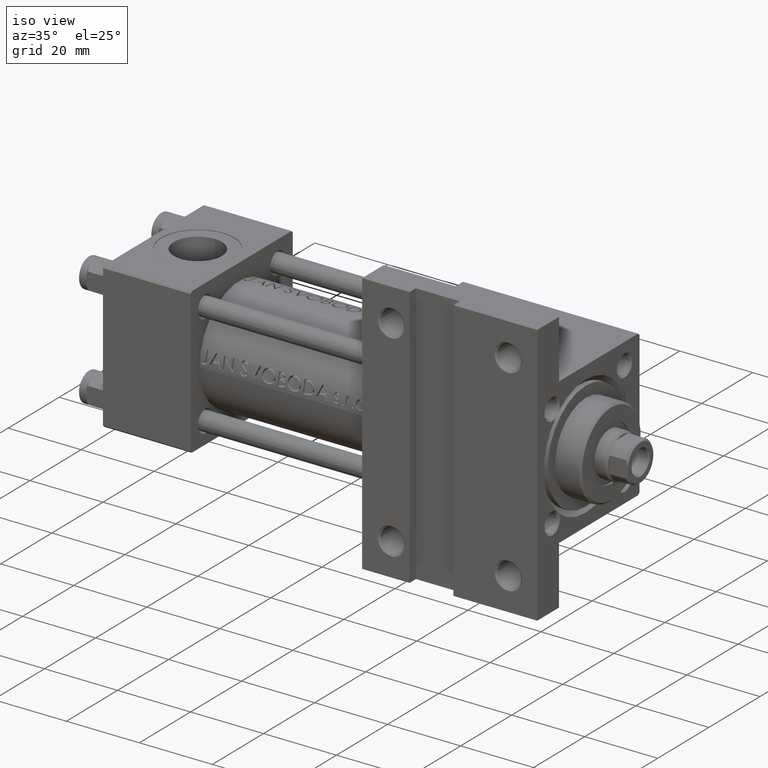
[diagram: clean part render]
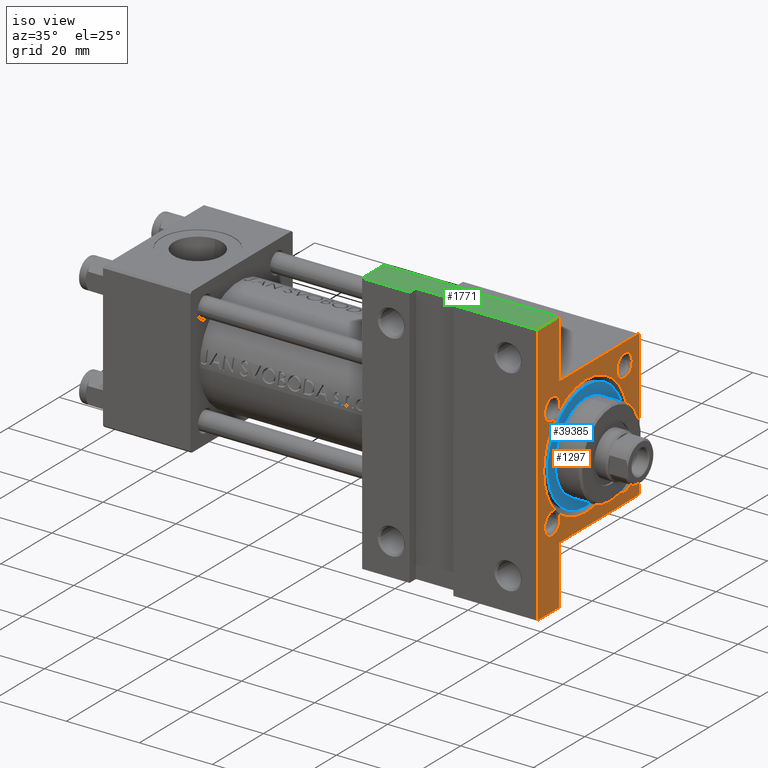
[diagram: same view with three faces highlighted in distinct colors, each labeled with its STEP entity id]
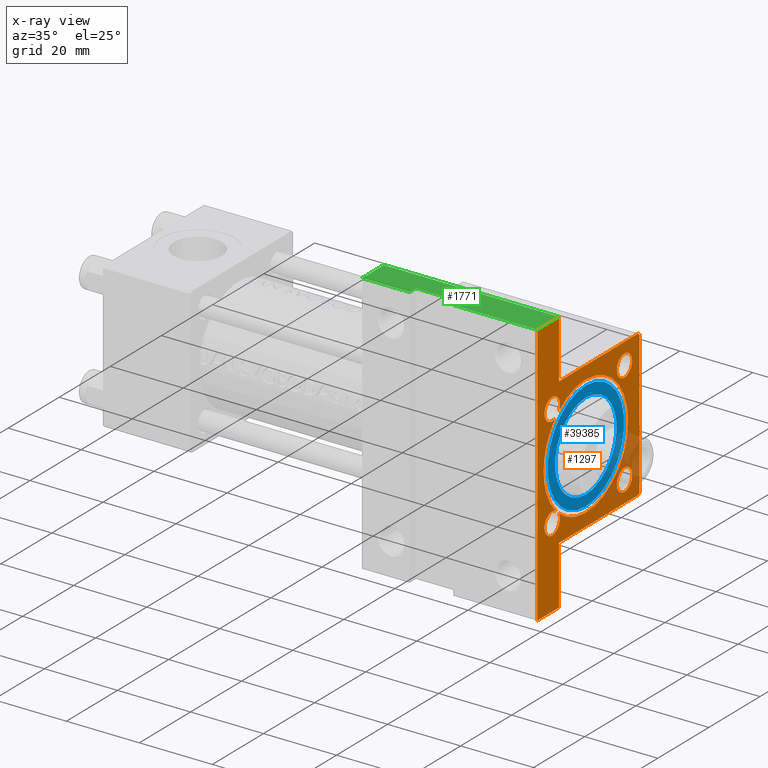
[diagram: x-ray of the same camera — body ghosted, the three highlighted faces saturated]
A machine part, iso view with three faces highlighted in distinct colors.
The next image is the same camera in x-ray (body ghosted, the three faces saturated) — at least one of them is partly hidden behind the body in this view.
Their STEP definitions:

[orange] entity #1297 — the highlighted planar face has unit normal (-1, 0, -0).
#249 = ORIENTED_EDGE ( 'NONE', *, *, #41827, .T. ) ;
#264 = ORIENTED_EDGE ( 'NONE', *, *, #32524, .F. ) ;
#411 = CIRCLE ( 'NONE', #37920, 3.000000000000031974 ) ;
#608 = EDGE_LOOP ( 'NONE', ( #23054, #41291 ) ) ;
#1120 = CARTESIAN_POINT ( 'NONE',  ( 118.9999999999999858, 20.00000000000000000, -11.50000000000000000 ) ) ;
#1297 = ADVANCED_FACE ( 'NONE', ( #10454, #13440, #6466, #40636 ), #21682, .F. ) ;
#1740 = CARTESIAN_POINT ( 'NONE',  ( 119.0000000000000142, 14.14999999999999858, 14.15000000000000036 ) ) ;
#2128 = CARTESIAN_POINT ( 'NONE',  ( 119.0000000000000142, 14.14999999999999858, -14.15000000000000036 ) ) ;
#2230 = CARTESIAN_POINT ( 'NONE',  ( 119.0000000000000142, 0.000000000000000000, 0.000000000000000000 ) ) ;
#2457 = EDGE_CURVE ( 'NONE', #38130, #35432, #19448, .T. ) ;
#2539 = CARTESIAN_POINT ( 'NONE',  ( 119.0000000000000142, 19.99999999999999645, -20.00000000000000000 ) ) ;
#2623 = EDGE_CURVE ( 'NONE', #14217, #37975, #3012, .T. ) ;
#3012 = CIRCLE ( 'NONE', #13351, 16.50000000000001421 ) ;
#3019 = DIRECTION ( 'NONE',  ( 8.673617379884029556E-16, -1.000000000000000000, 0.000000000000000000 ) ) ;
#3034 = DIRECTION ( 'NONE',  ( 0.000000000000000000, -1.000000000000000000, 0.000000000000000000 ) ) ;
#3184 = CARTESIAN_POINT ( 'NONE',  ( 118.9999999999999716, 36.00000000000001421, -11.50000000000000000 ) ) ;
#3350 = CIRCLE ( 'NONE', #45548, 3.000000000000031974 ) ;
#3710 = DIRECTION ( 'NONE',  ( -1.000000000000000000, -0.000000000000000000, -0.000000000000000000 ) ) ;
#3801 = VERTEX_POINT ( 'NONE', #1120 ) ;
#3923 = VERTEX_POINT ( 'NONE', #36272 ) ;
#4035 = DIRECTION ( 'NONE',  ( 0.000000000000000000, 0.000000000000000000, 1.000000000000000000 ) ) ;
#4233 = CIRCLE ( 'NONE', #17782, 16.50000000000001421 ) ;
#4400 = EDGE_CURVE ( 'NONE', #37975, #10993, #6940, .T. ) ;
#4580 = ORIENTED_EDGE ( 'NONE', *, *, #10381, .T. ) ;
#4896 = ORIENTED_EDGE ( 'NONE', *, *, #10167, .T. ) ;
#5664 = CARTESIAN_POINT ( 'NONE',  ( 119.0000000000000142, -14.14999999999999503, -14.15000000000000391 ) ) ;
#6290 = AXIS2_PLACEMENT_3D ( 'NONE', #5664, #43825, #32604 ) ;
#6293 = CARTESIAN_POINT ( 'NONE',  ( 119.0000000000000142, 14.14999999999999858, -14.15000000000000036 ) ) ;
#6389 = VERTEX_POINT ( 'NONE', #19272 ) ;
#6466 = FACE_BOUND ( 'NONE', #39363, .T. ) ;
#6588 = DIRECTION ( 'NONE',  ( 0.000000000000000000, 0.000000000000000000, 1.000000000000000000 ) ) ;
#6771 = CARTESIAN_POINT ( 'NONE',  ( 118.9999999999999716, 36.00000000000001421, -11.50000000000000000 ) ) ;
#6878 = VERTEX_POINT ( 'NONE', #32655 ) ;
#6884 = VERTEX_POINT ( 'NONE', #32167 ) ;
#6888 = CARTESIAN_POINT ( 'NONE',  ( 119.0000000000000142, 0.000000000000000000, -1.000000000000000888 ) ) ;
#6940 = CIRCLE ( 'NONE', #12503, 3.000000000000031974 ) ;
#7499 = AXIS2_PLACEMENT_3D ( 'NONE', #31102, #31588, #46563 ) ;
#7660 = ORIENTED_EDGE ( 'NONE', *, *, #27034, .F. ) ;
#7753 = DIRECTION ( 'NONE',  ( 0.000000000000000000, -1.000000000000000000, -8.673617379884035472E-17 ) ) ;
#7806 = ORIENTED_EDGE ( 'NONE', *, *, #44579, .T. ) ;
#8017 = VERTEX_POINT ( 'NONE', #18915 ) ;
#8088 = CIRCLE ( 'NONE', #46333, 16.50000000000001421 ) ;
#8223 = EDGE_CURVE ( 'NONE', #12756, #28258, #21415, .T. ) ;
#8418 = DIRECTION ( 'NONE',  ( 0.000000000000000000, -0.7071067811865474617, 0.7071067811865474617 ) ) ;
#8598 = ORIENTED_EDGE ( 'NONE', *, *, #18659, .T. ) ;
#9379 = VECTOR ( 'NONE', #15705, 1000.000000000000000 ) ;
#9632 = DIRECTION ( 'NONE',  ( -1.000000000000000000, -0.000000000000000000, -0.000000000000000000 ) ) ;
#10053 = EDGE_CURVE ( 'NONE', #28258, #6389, #37408, .T. ) ;
#10167 = EDGE_CURVE ( 'NONE', #38130, #3801, #28968, .T. ) ;
#10381 = EDGE_CURVE ( 'NONE', #11260, #3923, #45663, .T. ) ;
#10412 = CARTESIAN_POINT ( 'NONE',  ( 119.0000000000000142, 19.49999999999999645, 20.00000000000000000 ) ) ;
#10454 = FACE_BOUND ( 'NONE', #27647, .T. ) ;
#10612 = EDGE_CURVE ( 'NONE', #3923, #8017, #47318, .T. ) ;
#10780 = DIRECTION ( 'NONE',  ( 0.000000000000000000, 0.000000000000000000, 1.000000000000000000 ) ) ;
#10982 = CARTESIAN_POINT ( 'NONE',  ( 119.0000000000000000, -36.00000000000001421, -11.50000000000000000 ) ) ;
#10993 = VERTEX_POINT ( 'NONE', #37410 ) ;
#11017 = DIRECTION ( 'NONE',  ( 0.000000000000000000, 0.000000000000000000, -1.000000000000000000 ) ) ;
#11260 = VERTEX_POINT ( 'NONE', #10412 ) ;
#11483 = CARTESIAN_POINT ( 'NONE',  ( 119.0000000000000142, 14.14999999999999858, 17.15000000000003411 ) ) ;
#11731 = VERTEX_POINT ( 'NONE', #40922 ) ;
#11897 = AXIS2_PLACEMENT_3D ( 'NONE', #35466, #16728, #28230 ) ;
#12223 = CARTESIAN_POINT ( 'NONE',  ( 119.0000000000000142, -20.00000000000000000, -11.50000000000000355 ) ) ;
#12245 = CIRCLE ( 'NONE', #7499, 16.50000000000001421 ) ;
#12395 = DIRECTION ( 'NONE',  ( -0.000000000000000000, -0.7071067811865474617, -0.7071067811865474617 ) ) ;
#12503 = AXIS2_PLACEMENT_3D ( 'NONE', #6293, #21758, #10780 ) ;
#12756 = VERTEX_POINT ( 'NONE', #13779 ) ;
#12876 = CARTESIAN_POINT ( 'NONE',  ( 119.0000000000000142, -20.00000000000000355, 19.50000000000002487 ) ) ;
#12922 = ORIENTED_EDGE ( 'NONE', *, *, #20973, .T. ) ;
#13351 = AXIS2_PLACEMENT_3D ( 'NONE', #30389, #3710, #49357 ) ;
#13440 = FACE_BOUND ( 'NONE', #608, .T. ) ;
#13779 = CARTESIAN_POINT ( 'NONE',  ( 119.0000000000000142, -14.14999999999999503, -17.15000000000003766 ) ) ;
#14016 = ORIENTED_EDGE ( 'NONE', *, *, #10612, .T. ) ;
#14217 = VERTEX_POINT ( 'NONE', #15648 ) ;
#14497 = VERTEX_POINT ( 'NONE', #32957 ) ;
#14722 = VERTEX_POINT ( 'NONE', #48126 ) ;
#15006 = DIRECTION ( 'NONE',  ( -1.000000000000000000, -0.000000000000000000, -0.000000000000000000 ) ) ;
#15648 = CARTESIAN_POINT ( 'NONE',  ( 119.0000000000000142, 2.020667218593134678E-15, 15.50000000000001421 ) ) ;
#15705 = DIRECTION ( 'NONE',  ( 0.000000000000000000, 0.000000000000000000, -1.000000000000000000 ) ) ;
#15757 = DIRECTION ( 'NONE',  ( -1.000000000000000000, -0.000000000000000000, -0.000000000000000000 ) ) ;
#16173 = EDGE_CURVE ( 'NONE', #14722, #6878, #28024, .T. ) ;
#16728 = DIRECTION ( 'NONE',  ( -1.000000000000000000, -0.000000000000000000, -0.000000000000000000 ) ) ;
#17271 = VERTEX_POINT ( 'NONE', #10982 ) ;
#17477 = VECTOR ( 'NONE', #12395, 1000.000000000000114 ) ;
#17530 = DIRECTION ( 'NONE',  ( -1.000000000000000000, -0.000000000000000000, -0.000000000000000000 ) ) ;
#17595 = DIRECTION ( 'NONE',  ( -1.000000000000000000, -0.000000000000000000, -0.000000000000000000 ) ) ;
#17771 = ORIENTED_EDGE ( 'NONE', *, *, #4400, .T. ) ;
#17782 = AXIS2_PLACEMENT_3D ( 'NONE', #43803, #9632, #29331 ) ;
#18302 = VECTOR ( 'NONE', #7753, 1000.000000000000000 ) ;
#18329 = DIRECTION ( 'NONE',  ( 0.000000000000000000, 0.000000000000000000, 1.000000000000000000 ) ) ;
#18413 = VERTEX_POINT ( 'NONE', #41125 ) ;
#18659 = EDGE_CURVE ( 'NONE', #6884, #11731, #8088, .T. ) ;
#18823 = DIRECTION ( 'NONE',  ( -1.000000000000000000, -0.000000000000000000, -0.000000000000000000 ) ) ;
#18915 = CARTESIAN_POINT ( 'NONE',  ( 119.0000000000000142, -20.00000000000000355, 19.50000000000002487 ) ) ;
#19272 = CARTESIAN_POINT ( 'NONE',  ( 119.0000000000000142, -12.71526989445523448, -11.51531794627061345 ) ) ;
#19448 = LINE ( 'NONE', #34681, #9379 ) ;
#19546 = ORIENTED_EDGE ( 'NONE', *, *, #25597, .T. ) ;
#19807 = LINE ( 'NONE', #23564, #43334 ) ;
#20973 = EDGE_CURVE ( 'NONE', #44413, #25898, #45631, .T. ) ;
#21331 = DIRECTION ( 'NONE',  ( -1.000000000000000000, -0.000000000000000000, -0.000000000000000000 ) ) ;
#21345 = ORIENTED_EDGE ( 'NONE', *, *, #31842, .T. ) ;
#21415 = CIRCLE ( 'NONE', #6290, 3.000000000000031974 ) ;
#21682 = PLANE ( 'NONE',  #26114 ) ;
#21758 = DIRECTION ( 'NONE',  ( -1.000000000000000000, -0.000000000000000000, -0.000000000000000000 ) ) ;
#21997 = LINE ( 'NONE', #2539, #31567 ) ;
#23054 = ORIENTED_EDGE ( 'NONE', *, *, #16173, .T. ) ;
#23564 = CARTESIAN_POINT ( 'NONE',  ( 119.0000000000000142, -20.00000000000000355, 19.99999999999999645 ) ) ;
#24115 = AXIS2_PLACEMENT_3D ( 'NONE', #37641, #49124, #34385 ) ;
#24177 = VECTOR ( 'NONE', #8418, 1000.000000000000114 ) ;
#24367 = DIRECTION ( 'NONE',  ( -0.000000000000000000, -1.000000000000000000, -0.000000000000000000 ) ) ;
#24943 = DIRECTION ( 'NONE',  ( 0.000000000000000000, 0.000000000000000000, 1.000000000000000000 ) ) ;
#24963 = ORIENTED_EDGE ( 'NONE', *, *, #8223, .T. ) ;
#25220 = AXIS2_PLACEMENT_3D ( 'NONE', #26503, #15006, #4035 ) ;
#25597 = EDGE_CURVE ( 'NONE', #10993, #14497, #411, .T. ) ;
#25898 = VERTEX_POINT ( 'NONE', #46700 ) ;
#26114 = AXIS2_PLACEMENT_3D ( 'NONE', #2230, #29414, #40390 ) ;
#26408 = EDGE_CURVE ( 'NONE', #6878, #14722, #30790, .T. ) ;
#26503 = CARTESIAN_POINT ( 'NONE',  ( 119.0000000000000142, -14.14999999999999503, -14.15000000000000391 ) ) ;
#27034 = EDGE_CURVE ( 'NONE', #35432, #49277, #21997, .T. ) ;
#27123 = EDGE_CURVE ( 'NONE', #17271, #49277, #37450, .T. ) ;
#27274 = CIRCLE ( 'NONE', #48006, 3.000000000000031974 ) ;
#27278 = VERTEX_POINT ( 'NONE', #12223 ) ;
#27647 = EDGE_LOOP ( 'NONE', ( #31753, #12922 ) ) ;
#28024 = CIRCLE ( 'NONE', #39212, 3.000000000000031974 ) ;
#28230 = DIRECTION ( 'NONE',  ( 0.000000000000000000, 0.000000000000000000, 1.000000000000000000 ) ) ;
#28235 = ORIENTED_EDGE ( 'NONE', *, *, #43885, .T. ) ;
#28258 = VERTEX_POINT ( 'NONE', #45196 ) ;
#28568 = VERTEX_POINT ( 'NONE', #44886 ) ;
#28594 = CARTESIAN_POINT ( 'NONE',  ( 119.0000000000000000, -36.00000000000001421, -11.50000000000000000 ) ) ;
#28610 = VECTOR ( 'NONE', #3019, 1000.000000000000000 ) ;
#28968 = LINE ( 'NONE', #6771, #28610 ) ;
#29331 = DIRECTION ( 'NONE',  ( 0.000000000000000000, 0.000000000000000000, 1.000000000000000000 ) ) ;
#29414 = DIRECTION ( 'NONE',  ( -1.000000000000000000, 0.000000000000000000, -0.000000000000000000 ) ) ;
#29751 = CARTESIAN_POINT ( 'NONE',  ( 119.0000000000000142, 12.71526989445523803, -11.51531794627060989 ) ) ;
#29845 = DIRECTION ( 'NONE',  ( 0.000000000000000000, 0.000000000000000000, 1.000000000000000000 ) ) ;
#29989 = VECTOR ( 'NONE', #11017, 1000.000000000000000 ) ;
#30389 = CARTESIAN_POINT ( 'NONE',  ( 119.0000000000000142, 0.000000000000000000, -1.000000000000000888 ) ) ;
#30432 = ORIENTED_EDGE ( 'NONE', *, *, #31634, .T. ) ;
#30637 = CARTESIAN_POINT ( 'NONE',  ( 119.0000000000000142, 19.49999999999999645, 20.00000000000000000 ) ) ;
#30790 = CIRCLE ( 'NONE', #49110, 3.000000000000031974 ) ;
#31102 = CARTESIAN_POINT ( 'NONE',  ( 119.0000000000000142, 0.000000000000000000, -1.000000000000000888 ) ) ;
#31567 = VECTOR ( 'NONE', #3034, 1000.000000000000000 ) ;
#31588 = DIRECTION ( 'NONE',  ( -1.000000000000000000, -0.000000000000000000, -0.000000000000000000 ) ) ;
#31634 = EDGE_CURVE ( 'NONE', #11731, #18413, #12245, .T. ) ;
#31652 = ORIENTED_EDGE ( 'NONE', *, *, #36820, .T. ) ;
#31659 = CARTESIAN_POINT ( 'NONE',  ( 119.0000000000000142, 19.99999999999999645, 20.00000000000000000 ) ) ;
#31703 = CARTESIAN_POINT ( 'NONE',  ( 119.0000000000000000, -36.00000000000001421, -20.00000000000000000 ) ) ;
#31753 = ORIENTED_EDGE ( 'NONE', *, *, #39858, .T. ) ;
#31842 = EDGE_CURVE ( 'NONE', #8017, #27278, #19807, .T. ) ;
#31979 = VECTOR ( 'NONE', #42890, 1000.000000000000000 ) ;
#32024 = EDGE_LOOP ( 'NONE', ( #264, #7806, #4580, #14016, #21345, #48028, #41172, #7660, #34467, #4896 ) ) ;
#32167 = CARTESIAN_POINT ( 'NONE',  ( 119.0000000000000142, 11.41741110086830346, -12.91187322606187315 ) ) ;
#32350 = CARTESIAN_POINT ( 'NONE',  ( 119.0000000000000142, -14.14999999999999680, 14.15000000000000036 ) ) ;
#32524 = EDGE_CURVE ( 'NONE', #28568, #3801, #41676, .T. ) ;
#32604 = DIRECTION ( 'NONE',  ( 0.000000000000000000, 0.000000000000000000, 1.000000000000000000 ) ) ;
#32655 = CARTESIAN_POINT ( 'NONE',  ( 119.0000000000000142, -14.14999999999999680, 17.15000000000003411 ) ) ;
#32804 = DIRECTION ( 'NONE',  ( 0.000000000000000000, 0.000000000000000000, 1.000000000000000000 ) ) ;
#32957 = CARTESIAN_POINT ( 'NONE',  ( 119.0000000000000142, 14.14999999999999858, -17.15000000000003411 ) ) ;
#33016 = CARTESIAN_POINT ( 'NONE',  ( 119.0000000000000142, 14.14999999999999858, -14.15000000000000036 ) ) ;
#34385 = DIRECTION ( 'NONE',  ( 0.000000000000000000, 0.000000000000000000, 1.000000000000000000 ) ) ;
#34467 = ORIENTED_EDGE ( 'NONE', *, *, #2457, .F. ) ;
#34681 = CARTESIAN_POINT ( 'NONE',  ( 118.9999999999999716, 36.00000000000001421, -11.50000000000000000 ) ) ;
#34735 = CARTESIAN_POINT ( 'NONE',  ( 119.0000000000000142, -14.14999999999999680, 14.15000000000000036 ) ) ;
#35432 = VERTEX_POINT ( 'NONE', #36519 ) ;
#35466 = CARTESIAN_POINT ( 'NONE',  ( 119.0000000000000142, -14.14999999999999503, -14.15000000000000391 ) ) ;
#36155 = DIRECTION ( 'NONE',  ( -1.000000000000000000, -0.000000000000000000, -0.000000000000000000 ) ) ;
#36272 = CARTESIAN_POINT ( 'NONE',  ( 119.0000000000000142, -19.50000000000003197, 19.99999999999999645 ) ) ;
#36519 = CARTESIAN_POINT ( 'NONE',  ( 118.9999999999999716, 36.00000000000001421, -20.00000000000000000 ) ) ;
#36820 = EDGE_CURVE ( 'NONE', #18413, #12756, #46725, .T. ) ;
#37408 = CIRCLE ( 'NONE', #11897, 3.000000000000031974 ) ;
#37410 = CARTESIAN_POINT ( 'NONE',  ( 119.0000000000000142, 14.14999999999999858, -11.14999999999997016 ) ) ;
#37450 = LINE ( 'NONE', #49187, #29989 ) ;
#37641 = CARTESIAN_POINT ( 'NONE',  ( 119.0000000000000142, 14.14999999999999858, 14.15000000000000036 ) ) ;
#37920 = AXIS2_PLACEMENT_3D ( 'NONE', #33016, #17530, #6588 ) ;
#37975 = VERTEX_POINT ( 'NONE', #29751 ) ;
#38115 = LINE ( 'NONE', #30637, #24177 ) ;
#38130 = VERTEX_POINT ( 'NONE', #3184 ) ;
#38174 = CARTESIAN_POINT ( 'NONE',  ( 119.0000000000000142, 19.99999999999999645, 20.00000000000000000 ) ) ;
#39212 = AXIS2_PLACEMENT_3D ( 'NONE', #34735, #15757, #45964 ) ;
#39363 = EDGE_LOOP ( 'NONE', ( #8598, #30432, #31652, #24963, #46009, #28235, #42744, #17771, #19546, #249 ) ) ;
#39858 = EDGE_CURVE ( 'NONE', #25898, #44413, #3350, .T. ) ;
#40390 = DIRECTION ( 'NONE',  ( -0.000000000000000000, 0.000000000000000000, 1.000000000000000000 ) ) ;
#40636 = FACE_OUTER_BOUND ( 'NONE', #32024, .T. ) ;
#40922 = CARTESIAN_POINT ( 'NONE',  ( 119.0000000000000142, 0.000000000000000000, -17.50000000000001421 ) ) ;
#41125 = CARTESIAN_POINT ( 'NONE',  ( 119.0000000000000142, -11.41741110086830169, -12.91187322606187671 ) ) ;
#41172 = ORIENTED_EDGE ( 'NONE', *, *, #27123, .T. ) ;
#41291 = ORIENTED_EDGE ( 'NONE', *, *, #26408, .T. ) ;
#41676 = LINE ( 'NONE', #31659, #31979 ) ;
#41827 = EDGE_CURVE ( 'NONE', #14497, #6884, #27274, .T. ) ;
#42513 = DIRECTION ( 'NONE',  ( 0.000000000000000000, 8.673617379884036705E-17, -1.000000000000000000 ) ) ;
#42744 = ORIENTED_EDGE ( 'NONE', *, *, #2623, .T. ) ;
#42890 = DIRECTION ( 'NONE',  ( 0.000000000000000000, 0.000000000000000000, -1.000000000000000000 ) ) ;
#43312 = LINE ( 'NONE', #28594, #47247 ) ;
#43334 = VECTOR ( 'NONE', #42513, 1000.000000000000000 ) ;
#43803 = CARTESIAN_POINT ( 'NONE',  ( 119.0000000000000142, 0.000000000000000000, -1.000000000000000888 ) ) ;
#43825 = DIRECTION ( 'NONE',  ( -1.000000000000000000, -0.000000000000000000, -0.000000000000000000 ) ) ;
#43882 = EDGE_CURVE ( 'NONE', #27278, #17271, #43312, .T. ) ;
#43885 = EDGE_CURVE ( 'NONE', #6389, #14217, #4233, .T. ) ;
#44413 = VERTEX_POINT ( 'NONE', #11483 ) ;
#44579 = EDGE_CURVE ( 'NONE', #28568, #11260, #38115, .T. ) ;
#44886 = CARTESIAN_POINT ( 'NONE',  ( 119.0000000000000142, 19.99999999999999645, 19.50000000000000000 ) ) ;
#45196 = CARTESIAN_POINT ( 'NONE',  ( 119.0000000000000142, -14.14999999999999503, -11.14999999999997371 ) ) ;
#45548 = AXIS2_PLACEMENT_3D ( 'NONE', #1740, #36155, #24943 ) ;
#45631 = CIRCLE ( 'NONE', #24115, 3.000000000000031974 ) ;
#45663 = LINE ( 'NONE', #38174, #18302 ) ;
#45964 = DIRECTION ( 'NONE',  ( 0.000000000000000000, 0.000000000000000000, 1.000000000000000000 ) ) ;
#46009 = ORIENTED_EDGE ( 'NONE', *, *, #10053, .T. ) ;
#46333 = AXIS2_PLACEMENT_3D ( 'NONE', #6888, #18823, #18329 ) ;
#46563 = DIRECTION ( 'NONE',  ( 0.000000000000000000, 0.000000000000000000, 1.000000000000000000 ) ) ;
#46700 = CARTESIAN_POINT ( 'NONE',  ( 119.0000000000000142, 14.14999999999999858, 11.14999999999996838 ) ) ;
#46725 = CIRCLE ( 'NONE', #25220, 3.000000000000031974 ) ;
#47247 = VECTOR ( 'NONE', #24367, 1000.000000000000000 ) ;
#47318 = LINE ( 'NONE', #12876, #17477 ) ;
#48006 = AXIS2_PLACEMENT_3D ( 'NONE', #2128, #21331, #32804 ) ;
#48028 = ORIENTED_EDGE ( 'NONE', *, *, #43882, .T. ) ;
#48126 = CARTESIAN_POINT ( 'NONE',  ( 119.0000000000000142, -14.14999999999999680, 11.14999999999996838 ) ) ;
#49110 = AXIS2_PLACEMENT_3D ( 'NONE', #32350, #17595, #29845 ) ;
#49124 = DIRECTION ( 'NONE',  ( -1.000000000000000000, -0.000000000000000000, -0.000000000000000000 ) ) ;
#49187 = CARTESIAN_POINT ( 'NONE',  ( 119.0000000000000000, -36.00000000000001421, -11.50000000000000000 ) ) ;
#49277 = VERTEX_POINT ( 'NONE', #31703 ) ;
#49357 = DIRECTION ( 'NONE',  ( 0.000000000000000000, 0.000000000000000000, 1.000000000000000000 ) ) ;

[blue] entity #39385 — the highlighted planar face has unit normal (1, 0, 0).
#2573 = CIRCLE ( 'NONE', #32058, 15.00000000000000000 ) ;
#2863 = ORIENTED_EDGE ( 'NONE', *, *, #31168, .F. ) ;
#3591 = FACE_OUTER_BOUND ( 'NONE', #36602, .T. ) ;
#6344 = DIRECTION ( 'NONE',  ( 0.000000000000000000, 0.000000000000000000, 1.000000000000000000 ) ) ;
#8844 = DIRECTION ( 'NONE',  ( 1.000000000000000000, 0.000000000000000000, 0.000000000000000000 ) ) ;
#9049 = CIRCLE ( 'NONE', #10619, 12.00000000000000178 ) ;
#9207 = CARTESIAN_POINT ( 'NONE',  ( 15.00000000000000000, 1.836970198721029589E-15, 28.69999999999999929 ) ) ;
#10619 = AXIS2_PLACEMENT_3D ( 'NONE', #41730, #33749, #27903 ) ;
#11159 = ORIENTED_EDGE ( 'NONE', *, *, #20463, .T. ) ;
#12036 = AXIS2_PLACEMENT_3D ( 'NONE', #20123, #16363, #35583 ) ;
#12334 = DIRECTION ( 'NONE',  ( 0.000000000000000000, 0.000000000000000000, 1.000000000000000000 ) ) ;
#12920 = ORIENTED_EDGE ( 'NONE', *, *, #14301, .T. ) ;
#13831 = CARTESIAN_POINT ( 'NONE',  ( -12.00000000000000178, 0.000000000000000000, 28.69999999999999929 ) ) ;
#14301 = EDGE_CURVE ( 'NONE', #24914, #18398, #41540, .T. ) ;
#16242 = CIRCLE ( 'NONE', #44150, 12.00000000000000178 ) ;
#16363 = DIRECTION ( 'NONE',  ( 0.000000000000000000, 0.000000000000000000, 1.000000000000000000 ) ) ;
#18398 = VERTEX_POINT ( 'NONE', #34130 ) ;
#20123 = CARTESIAN_POINT ( 'NONE',  ( 0.000000000000000000, 0.000000000000000000, 28.69999999999999929 ) ) ;
#20463 = EDGE_CURVE ( 'NONE', #18398, #24914, #2573, .T. ) ;
#22552 = FACE_BOUND ( 'NONE', #49026, .T. ) ;
#24914 = VERTEX_POINT ( 'NONE', #9207 ) ;
#25816 = DIRECTION ( 'NONE',  ( 0.000000000000000000, 0.000000000000000000, 1.000000000000000000 ) ) ;
#26546 = CARTESIAN_POINT ( 'NONE',  ( 0.000000000000000000, 0.000000000000000000, 28.69999999999999929 ) ) ;
#27903 = DIRECTION ( 'NONE',  ( 1.000000000000000000, 0.000000000000000000, 0.000000000000000000 ) ) ;
#28765 = AXIS2_PLACEMENT_3D ( 'NONE', #26546, #25816, #33526 ) ;
#30489 = ORIENTED_EDGE ( 'NONE', *, *, #46032, .F. ) ;
#30688 = CARTESIAN_POINT ( 'NONE',  ( 12.00000000000000178, 1.469576158976824144E-15, 28.69999999999999929 ) ) ;
#31168 = EDGE_CURVE ( 'NONE', #35768, #41887, #9049, .T. ) ;
#32058 = AXIS2_PLACEMENT_3D ( 'NONE', #35530, #12334, #8844 ) ;
#33526 = DIRECTION ( 'NONE',  ( 1.000000000000000000, 0.000000000000000000, -0.000000000000000000 ) ) ;
#33529 = DIRECTION ( 'NONE',  ( 1.000000000000000000, 0.000000000000000000, 0.000000000000000000 ) ) ;
#33749 = DIRECTION ( 'NONE',  ( 0.000000000000000000, 0.000000000000000000, 1.000000000000000000 ) ) ;
#34130 = CARTESIAN_POINT ( 'NONE',  ( -15.00000000000000000, 0.000000000000000000, 28.69999999999999929 ) ) ;
#35530 = CARTESIAN_POINT ( 'NONE',  ( 0.000000000000000000, 0.000000000000000000, 28.69999999999999929 ) ) ;
#35583 = DIRECTION ( 'NONE',  ( 1.000000000000000000, 0.000000000000000000, 0.000000000000000000 ) ) ;
#35768 = VERTEX_POINT ( 'NONE', #30688 ) ;
#36602 = EDGE_LOOP ( 'NONE', ( #11159, #12920 ) ) ;
#37016 = PLANE ( 'NONE',  #28765 ) ;
#39385 = ADVANCED_FACE ( 'NONE', ( #22552, #3591 ), #37016, .T. ) ;
#41540 = CIRCLE ( 'NONE', #12036, 15.00000000000000000 ) ;
#41730 = CARTESIAN_POINT ( 'NONE',  ( 0.000000000000000000, 0.000000000000000000, 28.69999999999999929 ) ) ;
#41887 = VERTEX_POINT ( 'NONE', #13831 ) ;
#44150 = AXIS2_PLACEMENT_3D ( 'NONE', #45252, #6344, #33529 ) ;
#45252 = CARTESIAN_POINT ( 'NONE',  ( 0.000000000000000000, 0.000000000000000000, 28.69999999999999929 ) ) ;
#46032 = EDGE_CURVE ( 'NONE', #41887, #35768, #16242, .T. ) ;
#49026 = EDGE_LOOP ( 'NONE', ( #30489, #2863 ) ) ;

[green] entity #1771 — the highlighted planar face has unit normal (-0, 0, 1).
#693 = EDGE_CURVE ( 'NONE', #21708, #43440, #31117, .T. ) ;
#1332 = VECTOR ( 'NONE', #12149, 1000.000000000000000 ) ;
#1771 = ADVANCED_FACE ( 'NONE', ( #27575 ), #16322, .T. ) ;
#2975 = ORIENTED_EDGE ( 'NONE', *, *, #5843, .F. ) ;
#5117 = DIRECTION ( 'NONE',  ( -1.445602896647339656E-16, -1.000000000000000000, 0.000000000000000000 ) ) ;
#5338 = DIRECTION ( 'NONE',  ( 0.000000000000000000, 0.000000000000000000, -1.000000000000000000 ) ) ;
#5709 = LINE ( 'NONE', #35643, #21578 ) ;
#5843 = EDGE_CURVE ( 'NONE', #49277, #24404, #42830, .T. ) ;
#6613 = DIRECTION ( 'NONE',  ( -0.000000000000000000, -0.000000000000000000, -1.000000000000000000 ) ) ;
#6625 = ORIENTED_EDGE ( 'NONE', *, *, #31927, .T. ) ;
#7741 = LINE ( 'NONE', #33502, #39067 ) ;
#9211 = DIRECTION ( 'NONE',  ( -1.000000000000000000, -0.000000000000000000, -0.000000000000000000 ) ) ;
#10594 = CARTESIAN_POINT ( 'NONE',  ( 83.99999999999997158, -35.99999999999999289, -17.50000000000000000 ) ) ;
#10982 = CARTESIAN_POINT ( 'NONE',  ( 119.0000000000000000, -36.00000000000001421, -11.50000000000000000 ) ) ;
#11017 = DIRECTION ( 'NONE',  ( 0.000000000000000000, 0.000000000000000000, -1.000000000000000000 ) ) ;
#12149 = DIRECTION ( 'NONE',  ( -1.000000000000000000, 1.445602896647339656E-16, -0.000000000000000000 ) ) ;
#12781 = EDGE_CURVE ( 'NONE', #17271, #13708, #7741, .T. ) ;
#12829 = DIRECTION ( 'NONE',  ( 1.000000000000000000, -1.445602896647339656E-16, 0.000000000000000000 ) ) ;
#13483 = CARTESIAN_POINT ( 'NONE',  ( 71.00000000000001421, -36.00000000000000711, -11.50000000000000000 ) ) ;
#13708 = VERTEX_POINT ( 'NONE', #13483 ) ;
#14085 = EDGE_CURVE ( 'NONE', #31474, #31143, #5709, .T. ) ;
#15699 = ORIENTED_EDGE ( 'NONE', *, *, #12781, .T. ) ;
#16322 = PLANE ( 'NONE',  #34041 ) ;
#16603 = CARTESIAN_POINT ( 'NONE',  ( 71.00000000000001421, -36.00000000000000711, -20.00000000000000000 ) ) ;
#17271 = VERTEX_POINT ( 'NONE', #10982 ) ;
#18952 = EDGE_CURVE ( 'NONE', #31474, #24404, #27180, .T. ) ;
#19071 = CARTESIAN_POINT ( 'NONE',  ( 83.99999999999997158, -35.99999999999999289, -20.00000000000000000 ) ) ;
#19192 = DIRECTION ( 'NONE',  ( -1.000000000000000000, 1.445602896647339656E-16, -0.000000000000000000 ) ) ;
#20368 = DIRECTION ( 'NONE',  ( -1.000000000000000000, 1.445602896647339656E-16, -0.000000000000000000 ) ) ;
#21533 = CARTESIAN_POINT ( 'NONE',  ( 95.99999999999997158, -35.99999999999999289, -17.50000000000000000 ) ) ;
#21578 = VECTOR ( 'NONE', #9211, 1000.000000000000000 ) ;
#21689 = VECTOR ( 'NONE', #6613, 1000.000000000000000 ) ;
#21708 = VERTEX_POINT ( 'NONE', #19071 ) ;
#22525 = CARTESIAN_POINT ( 'NONE',  ( 83.99999999999997158, -35.99999999999999289, -17.50000000000000000 ) ) ;
#22572 = ORIENTED_EDGE ( 'NONE', *, *, #18952, .T. ) ;
#23198 = CARTESIAN_POINT ( 'NONE',  ( 71.00000000000001421, -36.00000000000000711, -20.00000000000000000 ) ) ;
#23711 = VECTOR ( 'NONE', #20368, 1000.000000000000000 ) ;
#24404 = VERTEX_POINT ( 'NONE', #41052 ) ;
#27054 = ORIENTED_EDGE ( 'NONE', *, *, #14085, .F. ) ;
#27123 = EDGE_CURVE ( 'NONE', #17271, #49277, #37450, .T. ) ;
#27180 = LINE ( 'NONE', #21533, #27246 ) ;
#27246 = VECTOR ( 'NONE', #40999, 1000.000000000000000 ) ;
#27575 = FACE_OUTER_BOUND ( 'NONE', #47470, .T. ) ;
#28062 = CARTESIAN_POINT ( 'NONE',  ( 71.00000000000001421, -36.00000000000000711, -11.50000000000000000 ) ) ;
#29989 = VECTOR ( 'NONE', #11017, 1000.000000000000000 ) ;
#30210 = ORIENTED_EDGE ( 'NONE', *, *, #27123, .F. ) ;
#31117 = LINE ( 'NONE', #31603, #1332 ) ;
#31143 = VERTEX_POINT ( 'NONE', #22525 ) ;
#31474 = VERTEX_POINT ( 'NONE', #35085 ) ;
#31603 = CARTESIAN_POINT ( 'NONE',  ( 71.00000000000001421, -36.00000000000000711, -20.00000000000000000 ) ) ;
#31703 = CARTESIAN_POINT ( 'NONE',  ( 119.0000000000000000, -36.00000000000001421, -20.00000000000000000 ) ) ;
#31927 = EDGE_CURVE ( 'NONE', #13708, #43440, #35514, .T. ) ;
#32322 = ORIENTED_EDGE ( 'NONE', *, *, #41467, .F. ) ;
#33502 = CARTESIAN_POINT ( 'NONE',  ( 71.00000000000001421, -36.00000000000000711, -11.50000000000000000 ) ) ;
#34041 = AXIS2_PLACEMENT_3D ( 'NONE', #28062, #5117, #12829 ) ;
#35085 = CARTESIAN_POINT ( 'NONE',  ( 95.99999999999997158, -36.00000000000001421, -17.50000000000000000 ) ) ;
#35514 = LINE ( 'NONE', #35763, #45733 ) ;
#35643 = CARTESIAN_POINT ( 'NONE',  ( 83.99999999999997158, -35.99999999999999289, -17.50000000000000000 ) ) ;
#35763 = CARTESIAN_POINT ( 'NONE',  ( 71.00000000000001421, -36.00000000000000711, -11.50000000000000000 ) ) ;
#37450 = LINE ( 'NONE', #49187, #29989 ) ;
#39067 = VECTOR ( 'NONE', #19192, 1000.000000000000000 ) ;
#40999 = DIRECTION ( 'NONE',  ( -0.000000000000000000, -0.000000000000000000, -1.000000000000000000 ) ) ;
#41052 = CARTESIAN_POINT ( 'NONE',  ( 95.99999999999997158, -35.99999999999999289, -20.00000000000000000 ) ) ;
#41467 = EDGE_CURVE ( 'NONE', #31143, #21708, #44761, .T. ) ;
#42830 = LINE ( 'NONE', #16603, #23711 ) ;
#43440 = VERTEX_POINT ( 'NONE', #23198 ) ;
#44761 = LINE ( 'NONE', #10594, #21689 ) ;
#45733 = VECTOR ( 'NONE', #5338, 1000.000000000000000 ) ;
#47431 = ORIENTED_EDGE ( 'NONE', *, *, #693, .F. ) ;
#47470 = EDGE_LOOP ( 'NONE', ( #22572, #2975, #30210, #15699, #6625, #47431, #32322, #27054 ) ) ;
#49187 = CARTESIAN_POINT ( 'NONE',  ( 119.0000000000000000, -36.00000000000001421, -11.50000000000000000 ) ) ;
#49277 = VERTEX_POINT ( 'NONE', #31703 ) ;